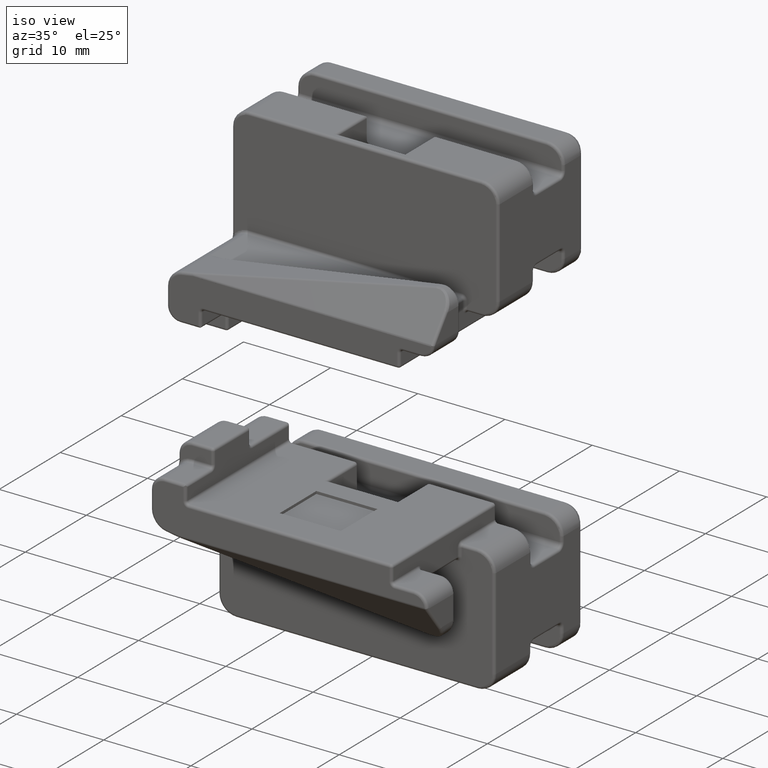
[diagram: clean part render]
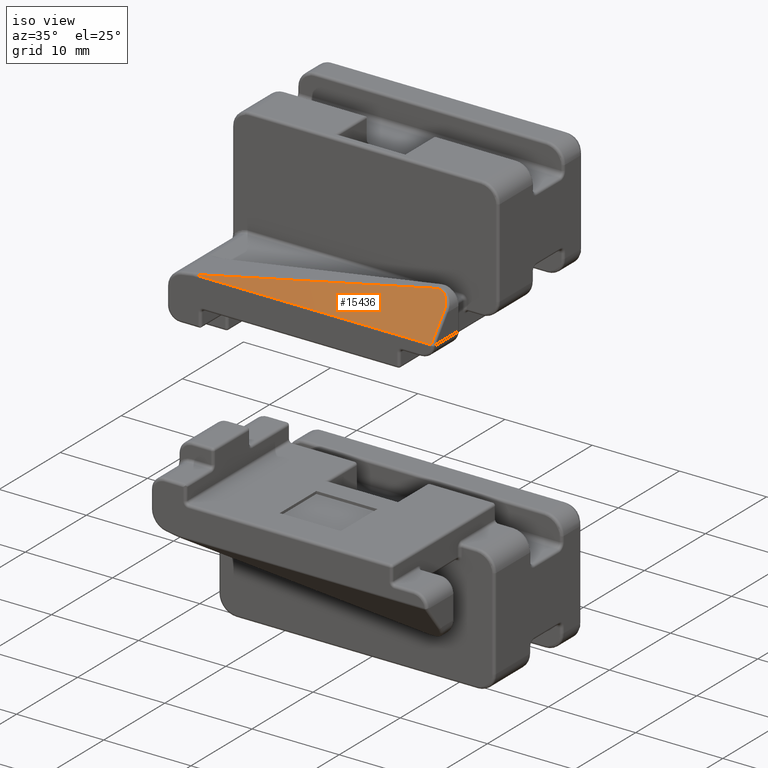
[diagram: same view with one face highlighted and labeled with its STEP entity id]
A machine part, iso view. The second image highlights one B-rep face of the part: STEP entity #15436.
In plain terms, the highlighted planar face has unit normal (0, 0.7894, -0.6139).
Its self-contained STEP definition (entity closure, byte-faithful):
#26 = EDGE_CURVE ( 'NONE', #27289, #24658, #22989, .T. ) ;
#57 = DIRECTION ( 'NONE',  ( 0.0000000000000000000, 0.6139406135149199100, 0.7893522173763266600 ) ) ;
#184 = EDGE_LOOP ( 'NONE', ( #22099, #10349, #956, #13553 ) ) ;
#452 = CARTESIAN_POINT ( 'NONE',  ( -86.03158106041587400, 40.83510006603674500, -21.73073146381504700 ) ) ;
#956 = ORIENTED_EDGE ( 'NONE', *, *, #21844, .F. ) ;
#1793 = CARTESIAN_POINT ( 'NONE',  ( -84.47419785715631200, 37.58650358031873400, -25.90749837402390600 ) ) ;
#2885 = CARTESIAN_POINT ( 'NONE',  ( -85.62706843369969100, 40.74735437935811400, -21.84354734668756500 ) ) ;
#5360 = CARTESIAN_POINT ( 'NONE',  ( -85.11746682326290200, 40.45728621545949700, -22.21649212884292300 ) ) ;
#6555 = CARTESIAN_POINT ( 'NONE',  ( -84.76519785715632300, 40.92020507557524700, -21.62131073726552800 ) ) ;
#6586 = DIRECTION ( 'NONE',  ( -0.0000000000000000000, -0.6139406135149199100, -0.7893522173763266600 ) ) ;
#7795 = CARTESIAN_POINT ( 'NONE',  ( -84.81134765891650300, 40.02769323028839200, -22.76882596692006200 ) ) ;
#10147 = EDGE_CURVE ( 'NONE', #24658, #29828, #16378, .T. ) ;
#10188 = CARTESIAN_POINT ( 'NONE',  ( -84.76519785715632300, 39.70116030110079900, -23.18865401873268400 ) ) ;
#10349 = ORIENTED_EDGE ( 'NONE', *, *, #14208, .F. ) ;
#10957 = VECTOR ( 'NONE', #6586, 1000.000000000000100 ) ;
#11177 = CARTESIAN_POINT ( 'NONE',  ( -84.76519785715632300, 39.70116030110079900, -23.18865401873268400 ) ) ;
#11230 = CARTESIAN_POINT ( 'NONE',  ( -86.45337869932032500, 40.81819966979114200, -21.75246054470224500 ) ) ;
#11313 = LINE ( 'NONE', #11482, #16824 ) ;
#11482 = CARTESIAN_POINT ( 'NONE',  ( -84.52174577444054600, 41.06212676691268400, -21.43883999126025200 ) ) ;
#13553 = ORIENTED_EDGE ( 'NONE', *, *, #10147, .F. ) ;
#14208 = EDGE_CURVE ( 'NONE', #20669, #27289, #21266, .T. ) ;
#14490 = DIRECTION ( 'NONE',  ( 0.0000000000000000000, 0.7893522173763267700, -0.6139406135149200200 ) ) ;
#15436 = ADVANCED_FACE ( 'NONE', ( #19917 ), #16722, .F. ) ;
#16378 = LINE ( 'NONE', #1793, #16523 ) ;
#16523 = VECTOR ( 'NONE', #23492, 1000.000000000000000 ) ;
#16722 = PLANE ( 'NONE',  #26463 ) ;
#16824 = VECTOR ( 'NONE', #30476, 1000.000000000000100 ) ;
#17183 = CARTESIAN_POINT ( 'NONE',  ( -86.45337869932032500, 40.81819966979114200, -21.75246054470224500 ) ) ;
#17537 = CARTESIAN_POINT ( 'NONE',  ( -84.76519785715632300, 37.58650358031873400, -25.90749837402390900 ) ) ;
#19609 = CARTESIAN_POINT ( 'NONE',  ( -85.43732719681450800, 40.66893216050142700, -21.94437591378902000 ) ) ;
#19917 = FACE_OUTER_BOUND ( 'NONE', #184, .T. ) ;
#20669 = VERTEX_POINT ( 'NONE', #11230 ) ;
#21266 = B_SPLINE_CURVE_WITH_KNOTS ( 'NONE', 3,
 ( #17183, #26687, #452, #2885, #19609, #5360, #21980, #7795, #24416, #10188 ),
 .UNSPECIFIED., .F., .F.,
 ( 4, 2, 2, 2, 4 ),
 ( 0.0000000000000000000, 0.2499999999999998600, 0.5000000000000000000, 0.7500000000000001100, 1.000000000000000000 ),
 .UNSPECIFIED. ) ;
#21844 = EDGE_CURVE ( 'NONE', #29828, #20669, #11313, .T. ) ;
#21980 = CARTESIAN_POINT ( 'NONE',  ( -84.98753325038134700, 40.32418527560468400, -22.38762190865625700 ) ) ;
#22099 = ORIENTED_EDGE ( 'NONE', *, *, #26, .F. ) ;
#22989 = LINE ( 'NONE', #6555, #10957 ) ;
#23492 = DIRECTION ( 'NONE',  ( -1.000000000000000000, 0.0000000000000000000, 0.0000000000000000000 ) ) ;
#24416 = CARTESIAN_POINT ( 'NONE',  ( -84.76519785716462300, 39.86451755923540200, -22.97862325827389900 ) ) ;
#24658 = VERTEX_POINT ( 'NONE', #17537 ) ;
#26463 = AXIS2_PLACEMENT_3D ( 'NONE', #28765, #14490, #57 ) ;
#26687 = CARTESIAN_POINT ( 'NONE',  ( -86.24603851791981400, 40.84438264062831800, -21.71879672505444200 ) ) ;
#26734 = CARTESIAN_POINT ( 'NONE',  ( -112.0448387842965600, 37.58650358031862700, -25.90749837402404800 ) ) ;
#27289 = VERTEX_POINT ( 'NONE', #11177 ) ;
#28765 = CARTESIAN_POINT ( 'NONE',  ( -84.47419785715631200, 40.92020507557524700, -21.62131073726552800 ) ) ;
#29828 = VERTEX_POINT ( 'NONE', #26734 ) ;
#30476 = DIRECTION ( 'NONE',  ( 0.9794946140225321300, 0.1236908290220692800, 0.1590310658855179100 ) ) ;